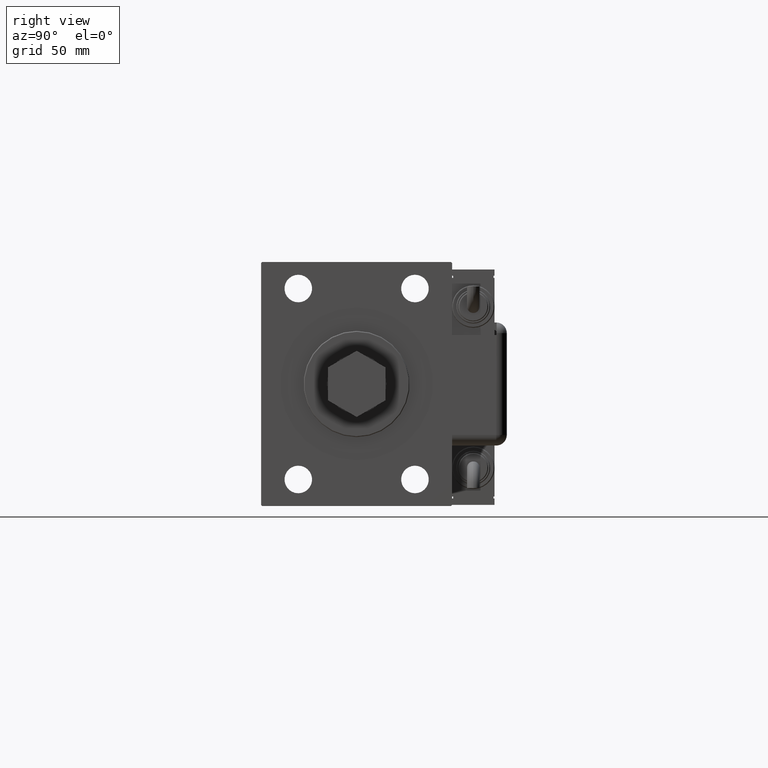
[diagram: clean part render]
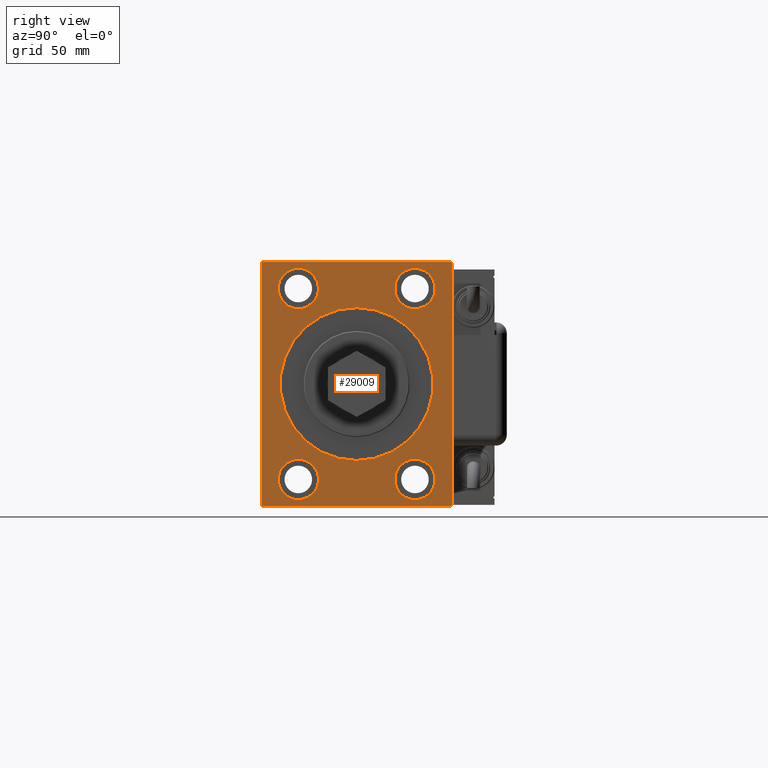
[diagram: same view with one face highlighted and labeled with its STEP entity id]
A machine part, right view. The second image highlights one B-rep face of the part: STEP entity #29009.
In plain terms, the highlighted planar face has unit normal (1, 0, 0).
Its self-contained STEP definition (entity closure, byte-faithful):
#166 = VERTEX_POINT ( 'NONE', #44844 ) ;
#1652 = VERTEX_POINT ( 'NONE', #46540 ) ;
#2323 = DIRECTION ( 'NONE',  ( -1.000000000000000000, -0.000000000000000000, -0.000000000000000000 ) ) ;
#2569 = CARTESIAN_POINT ( 'NONE',  ( 119.7000000000000028, 44.49999999999995737, -57.50000000000001421 ) ) ;
#3242 = ORIENTED_EDGE ( 'NONE', *, *, #55758, .T. ) ;
#3376 = ORIENTED_EDGE ( 'NONE', *, *, #60641, .T. ) ;
#3405 = LINE ( 'NONE', #32169, #45010 ) ;
#3663 = CARTESIAN_POINT ( 'NONE',  ( 119.7000000000000028, -27.50000000000000000, 54.50000000000000000 ) ) ;
#5267 = VERTEX_POINT ( 'NONE', #42845 ) ;
#5726 = FACE_BOUND ( 'NONE', #39815, .T. ) ;
#5850 = CARTESIAN_POINT ( 'NONE',  ( 119.7000000000000028, 51.00000000000000000, 51.00000000000000000 ) ) ;
#5878 = VECTOR ( 'NONE', #20703, 1000.000000000000114 ) ;
#6074 = CARTESIAN_POINT ( 'NONE',  ( 119.7000000000000028, -51.00000000000001421, -51.00000000000001421 ) ) ;
#6187 = AXIS2_PLACEMENT_3D ( 'NONE', #21725, #40282, #16780 ) ;
#6253 = VECTOR ( 'NONE', #49906, 1000.000000000000000 ) ;
#6316 = DIRECTION ( 'NONE',  ( 1.000000000000000000, 0.000000000000000000, 0.000000000000000000 ) ) ;
#7704 = EDGE_CURVE ( 'NONE', #44798, #1652, #42250, .T. ) ;
#8391 = CARTESIAN_POINT ( 'NONE',  ( 119.7000000000000028, 27.50000000000000000, 45.00000000000000000 ) ) ;
#9319 = VERTEX_POINT ( 'NONE', #48025 ) ;
#9547 = EDGE_LOOP ( 'NONE', ( #46536, #15057, #49325, #34138, #33474, #19477, #43448, #49250 ) ) ;
#10188 = LINE ( 'NONE', #5850, #5878 ) ;
#10515 = CARTESIAN_POINT ( 'NONE',  ( 119.7000000000000028, -27.50000000000000000, 45.00000000000000000 ) ) ;
#10525 = CARTESIAN_POINT ( 'NONE',  ( 119.7000000000000028, 27.50000000000000000, -45.00000000000000000 ) ) ;
#10531 = EDGE_LOOP ( 'NONE', ( #3242, #41952 ) ) ;
#10575 = CARTESIAN_POINT ( 'NONE',  ( 119.7000000000000028, 44.99999999999998579, 57.50000000000000000 ) ) ;
#10672 = FACE_BOUND ( 'NONE', #10531, .T. ) ;
#10761 = CARTESIAN_POINT ( 'NONE',  ( 119.7000000000000028, 50.99999999999938893, -51.00000000000080291 ) ) ;
#10812 = DIRECTION ( 'NONE',  ( -1.000000000000000000, -0.000000000000000000, -0.000000000000000000 ) ) ;
#10880 = LINE ( 'NONE', #10575, #55305 ) ;
#11281 = PLANE ( 'NONE',  #50634 ) ;
#13838 = VERTEX_POINT ( 'NONE', #52798 ) ;
#13925 = AXIS2_PLACEMENT_3D ( 'NONE', #50779, #17726, #27899 ) ;
#13962 = CARTESIAN_POINT ( 'NONE',  ( 119.7000000000000028, -44.50000000000000000, 57.49999999999998579 ) ) ;
#14197 = LINE ( 'NONE', #10761, #40024 ) ;
#15057 = ORIENTED_EDGE ( 'NONE', *, *, #49686, .T. ) ;
#15143 = CARTESIAN_POINT ( 'NONE',  ( 119.7000000000000028, -27.50000000000000000, -54.50000000000000000 ) ) ;
#16281 = CIRCLE ( 'NONE', #43908, 9.500000000000001776 ) ;
#16780 = DIRECTION ( 'NONE',  ( 0.000000000000000000, 0.000000000000000000, 1.000000000000000000 ) ) ;
#16845 = LINE ( 'NONE', #21788, #6253 ) ;
#17108 = DIRECTION ( 'NONE',  ( 0.000000000000000000, -0.7071067811865474617, -0.7071067811865474617 ) ) ;
#17631 = EDGE_CURVE ( 'NONE', #19137, #42805, #40388, .T. ) ;
#17726 = DIRECTION ( 'NONE',  ( -1.000000000000000000, -0.000000000000000000, -0.000000000000000000 ) ) ;
#18602 = EDGE_LOOP ( 'NONE', ( #3376, #59871 ) ) ;
#19137 = VERTEX_POINT ( 'NONE', #53771 ) ;
#19477 = ORIENTED_EDGE ( 'NONE', *, *, #58042, .T. ) ;
#19964 = FACE_OUTER_BOUND ( 'NONE', #9547, .T. ) ;
#20112 = DIRECTION ( 'NONE',  ( -1.000000000000000000, -0.000000000000000000, -0.000000000000000000 ) ) ;
#20154 = AXIS2_PLACEMENT_3D ( 'NONE', #35477, #36390, #26495 ) ;
#20319 = LINE ( 'NONE', #6074, #53843 ) ;
#20649 = EDGE_CURVE ( 'NONE', #57451, #53621, #16845, .T. ) ;
#20703 = DIRECTION ( 'NONE',  ( -0.000000000000000000, -0.7071067811865474617, 0.7071067811865474617 ) ) ;
#20787 = DIRECTION ( 'NONE',  ( 0.000000000000000000, -1.000000000000000000, -1.541976423090495633E-16 ) ) ;
#21190 = DIRECTION ( 'NONE',  ( 0.000000000000000000, 0.000000000000000000, 1.000000000000000000 ) ) ;
#21416 = CARTESIAN_POINT ( 'NONE',  ( 119.7000000000000028, -27.50000000000000000, -35.50000000000000000 ) ) ;
#21418 = CIRCLE ( 'NONE', #22384, 9.500000000000001776 ) ;
#21617 = DIRECTION ( 'NONE',  ( 0.000000000000000000, 0.000000000000000000, 1.000000000000000000 ) ) ;
#21628 = CARTESIAN_POINT ( 'NONE',  ( 119.7000000000000028, 27.50000000000000000, 54.50000000000000000 ) ) ;
#21725 = CARTESIAN_POINT ( 'NONE',  ( 119.7000000000000028, -27.50000000000000000, 45.00000000000000000 ) ) ;
#21788 = CARTESIAN_POINT ( 'NONE',  ( 119.7000000000000028, -45.00000000000000000, 57.49999999999998579 ) ) ;
#22052 = LINE ( 'NONE', #35972, #32788 ) ;
#22384 = AXIS2_PLACEMENT_3D ( 'NONE', #39857, #45100, #21617 ) ;
#22981 = CIRCLE ( 'NONE', #20154, 36.00000000000000000 ) ;
#23042 = ORIENTED_EDGE ( 'NONE', *, *, #27209, .F. ) ;
#24153 = CIRCLE ( 'NONE', #43875, 36.00000000000000000 ) ;
#24255 = VERTEX_POINT ( 'NONE', #28678 ) ;
#24607 = FACE_BOUND ( 'NONE', #18602, .T. ) ;
#25826 = CARTESIAN_POINT ( 'NONE',  ( 119.7000000000000028, -27.50000000000000000, -45.00000000000000000 ) ) ;
#25907 = DIRECTION ( 'NONE',  ( -0.000000000000000000, 0.7071067811865574537, 0.7071067811865376918 ) ) ;
#26495 = DIRECTION ( 'NONE',  ( 0.000000000000000000, 0.000000000000000000, -1.000000000000000000 ) ) ;
#26508 = CIRCLE ( 'NONE', #27478, 9.500000000000001776 ) ;
#27209 = EDGE_CURVE ( 'NONE', #24255, #31916, #24153, .T. ) ;
#27262 = DIRECTION ( 'NONE',  ( -1.000000000000000000, -0.000000000000000000, -0.000000000000000000 ) ) ;
#27308 = ORIENTED_EDGE ( 'NONE', *, *, #49871, .T. ) ;
#27478 = AXIS2_PLACEMENT_3D ( 'NONE', #25826, #2323, #21190 ) ;
#27899 = DIRECTION ( 'NONE',  ( 0.000000000000000000, 0.000000000000000000, 1.000000000000000000 ) ) ;
#28040 = EDGE_CURVE ( 'NONE', #31916, #24255, #22981, .T. ) ;
#28447 = AXIS2_PLACEMENT_3D ( 'NONE', #10525, #20112, #42385 ) ;
#28595 = EDGE_LOOP ( 'NONE', ( #23042, #58715 ) ) ;
#28678 = CARTESIAN_POINT ( 'NONE',  ( 119.7000000000000028, 0.000000000000000000, -36.00000000000000000 ) ) ;
#29009 = ADVANCED_FACE ( 'NONE', ( #5726, #44058, #24607, #10672, #44367, #19964 ), #11281, .T. ) ;
#29433 = VERTEX_POINT ( 'NONE', #35043 ) ;
#29449 = EDGE_CURVE ( 'NONE', #29433, #47200, #32872, .T. ) ;
#29553 = DIRECTION ( 'NONE',  ( 1.000000000000000000, 0.000000000000000000, 0.000000000000000000 ) ) ;
#30307 = DIRECTION ( 'NONE',  ( 0.000000000000000000, 0.000000000000000000, 1.000000000000000000 ) ) ;
#30535 = CIRCLE ( 'NONE', #37466, 9.500000000000001776 ) ;
#31197 = EDGE_LOOP ( 'NONE', ( #44148, #27308 ) ) ;
#31426 = CARTESIAN_POINT ( 'NONE',  ( 119.7000000000000028, 27.50000000000000000, -45.00000000000000000 ) ) ;
#31916 = VERTEX_POINT ( 'NONE', #60323 ) ;
#32169 = CARTESIAN_POINT ( 'NONE',  ( 119.7000000000000028, 45.00000000000000000, -57.50000000000001421 ) ) ;
#32788 = VECTOR ( 'NONE', #17108, 1000.000000000000114 ) ;
#32872 = CIRCLE ( 'NONE', #6187, 9.500000000000001776 ) ;
#33474 = ORIENTED_EDGE ( 'NONE', *, *, #17631, .T. ) ;
#33779 = VERTEX_POINT ( 'NONE', #21416 ) ;
#34138 = ORIENTED_EDGE ( 'NONE', *, *, #35571, .T. ) ;
#34625 = CARTESIAN_POINT ( 'NONE',  ( 119.7000000000000028, -45.00000000000000000, -57.00000000000004263 ) ) ;
#35043 = CARTESIAN_POINT ( 'NONE',  ( 119.7000000000000028, -27.50000000000000000, 35.50000000000000000 ) ) ;
#35477 = CARTESIAN_POINT ( 'NONE',  ( 119.7000000000000028, 0.000000000000000000, 0.000000000000000000 ) ) ;
#35571 = EDGE_CURVE ( 'NONE', #53621, #19137, #20319, .T. ) ;
#35803 = ORIENTED_EDGE ( 'NONE', *, *, #39540, .T. ) ;
#35972 = CARTESIAN_POINT ( 'NONE',  ( 119.7000000000000028, -51.00000000000000711, 51.00000000000000711 ) ) ;
#36390 = DIRECTION ( 'NONE',  ( 1.000000000000000000, 0.000000000000000000, 0.000000000000000000 ) ) ;
#37466 = AXIS2_PLACEMENT_3D ( 'NONE', #8391, #27262, #55686 ) ;
#37881 = DIRECTION ( 'NONE',  ( 0.000000000000000000, 0.000000000000000000, 1.000000000000000000 ) ) ;
#39427 = DIRECTION ( 'NONE',  ( 0.000000000000000000, 0.000000000000000000, -1.000000000000000000 ) ) ;
#39540 = EDGE_CURVE ( 'NONE', #1652, #44798, #54017, .T. ) ;
#39815 = EDGE_LOOP ( 'NONE', ( #45432, #35803 ) ) ;
#39857 = CARTESIAN_POINT ( 'NONE',  ( 119.7000000000000028, 27.50000000000000000, 45.00000000000000000 ) ) ;
#40024 = VECTOR ( 'NONE', #25907, 999.9999999999998863 ) ;
#40282 = DIRECTION ( 'NONE',  ( -1.000000000000000000, -0.000000000000000000, -0.000000000000000000 ) ) ;
#40388 = LINE ( 'NONE', #49951, #55543 ) ;
#41304 = DIRECTION ( 'NONE',  ( 0.000000000000000000, 1.000000000000000000, 0.000000000000000000 ) ) ;
#41952 = ORIENTED_EDGE ( 'NONE', *, *, #29449, .T. ) ;
#42250 = CIRCLE ( 'NONE', #28447, 9.500000000000001776 ) ;
#42385 = DIRECTION ( 'NONE',  ( 0.000000000000000000, 0.000000000000000000, 1.000000000000000000 ) ) ;
#42562 = EDGE_CURVE ( 'NONE', #33779, #53475, #26508, .T. ) ;
#42805 = VERTEX_POINT ( 'NONE', #2569 ) ;
#42845 = CARTESIAN_POINT ( 'NONE',  ( 119.7000000000000028, 44.50000000000001421, 57.50000000000000000 ) ) ;
#43448 = ORIENTED_EDGE ( 'NONE', *, *, #58797, .T. ) ;
#43875 = AXIS2_PLACEMENT_3D ( 'NONE', #54227, #6316, #59163 ) ;
#43908 = AXIS2_PLACEMENT_3D ( 'NONE', #10515, #10812, #30307 ) ;
#44058 = FACE_BOUND ( 'NONE', #31197, .T. ) ;
#44148 = ORIENTED_EDGE ( 'NONE', *, *, #42562, .T. ) ;
#44367 = FACE_BOUND ( 'NONE', #28595, .T. ) ;
#44486 = EDGE_CURVE ( 'NONE', #13838, #48207, #30535, .T. ) ;
#44549 = VERTEX_POINT ( 'NONE', #13962 ) ;
#44798 = VERTEX_POINT ( 'NONE', #44984 ) ;
#44844 = CARTESIAN_POINT ( 'NONE',  ( 119.7000000000000028, 44.99999999999998579, 57.00000000000000000 ) ) ;
#44984 = CARTESIAN_POINT ( 'NONE',  ( 119.7000000000000028, 27.50000000000000000, -35.50000000000000000 ) ) ;
#45010 = VECTOR ( 'NONE', #59658, 1000.000000000000000 ) ;
#45100 = DIRECTION ( 'NONE',  ( -1.000000000000000000, -0.000000000000000000, -0.000000000000000000 ) ) ;
#45432 = ORIENTED_EDGE ( 'NONE', *, *, #7704, .T. ) ;
#45909 = EDGE_CURVE ( 'NONE', #166, #5267, #10188, .T. ) ;
#46133 = AXIS2_PLACEMENT_3D ( 'NONE', #31426, #46848, #37881 ) ;
#46536 = ORIENTED_EDGE ( 'NONE', *, *, #46680, .T. ) ;
#46540 = CARTESIAN_POINT ( 'NONE',  ( 119.7000000000000028, 27.50000000000000000, -54.50000000000000000 ) ) ;
#46680 = EDGE_CURVE ( 'NONE', #5267, #44549, #10880, .T. ) ;
#46848 = DIRECTION ( 'NONE',  ( -1.000000000000000000, -0.000000000000000000, -0.000000000000000000 ) ) ;
#47200 = VERTEX_POINT ( 'NONE', #3663 ) ;
#48025 = CARTESIAN_POINT ( 'NONE',  ( 119.7000000000000028, 45.00000000000000000, -57.00000000000001421 ) ) ;
#48207 = VERTEX_POINT ( 'NONE', #21628 ) ;
#49250 = ORIENTED_EDGE ( 'NONE', *, *, #45909, .T. ) ;
#49325 = ORIENTED_EDGE ( 'NONE', *, *, #20649, .T. ) ;
#49686 = EDGE_CURVE ( 'NONE', #44549, #57451, #22052, .T. ) ;
#49871 = EDGE_CURVE ( 'NONE', #53475, #33779, #56375, .T. ) ;
#49906 = DIRECTION ( 'NONE',  ( 0.000000000000000000, 0.000000000000000000, -1.000000000000000000 ) ) ;
#49951 = CARTESIAN_POINT ( 'NONE',  ( 119.7000000000000028, -45.00000000000000000, -57.50000000000001421 ) ) ;
#50634 = AXIS2_PLACEMENT_3D ( 'NONE', #57663, #29553, #39427 ) ;
#50779 = CARTESIAN_POINT ( 'NONE',  ( 119.7000000000000028, -27.50000000000000000, -45.00000000000000000 ) ) ;
#52798 = CARTESIAN_POINT ( 'NONE',  ( 119.7000000000000028, 27.50000000000000000, 35.50000000000000000 ) ) ;
#53373 = DIRECTION ( 'NONE',  ( -0.000000000000000000, 0.7071067811865474617, -0.7071067811865474617 ) ) ;
#53475 = VERTEX_POINT ( 'NONE', #15143 ) ;
#53621 = VERTEX_POINT ( 'NONE', #34625 ) ;
#53631 = CARTESIAN_POINT ( 'NONE',  ( 119.7000000000000028, -45.00000000000000000, 57.00000000000001421 ) ) ;
#53771 = CARTESIAN_POINT ( 'NONE',  ( 119.7000000000000028, -44.50000000000002842, -57.50000000000001421 ) ) ;
#53843 = VECTOR ( 'NONE', #53373, 1000.000000000000114 ) ;
#54017 = CIRCLE ( 'NONE', #46133, 9.500000000000001776 ) ;
#54227 = CARTESIAN_POINT ( 'NONE',  ( 119.7000000000000028, 0.000000000000000000, 0.000000000000000000 ) ) ;
#55305 = VECTOR ( 'NONE', #20787, 1000.000000000000000 ) ;
#55543 = VECTOR ( 'NONE', #41304, 1000.000000000000000 ) ;
#55686 = DIRECTION ( 'NONE',  ( 0.000000000000000000, 0.000000000000000000, 1.000000000000000000 ) ) ;
#55758 = EDGE_CURVE ( 'NONE', #47200, #29433, #16281, .T. ) ;
#56375 = CIRCLE ( 'NONE', #13925, 9.500000000000001776 ) ;
#57451 = VERTEX_POINT ( 'NONE', #53631 ) ;
#57663 = CARTESIAN_POINT ( 'NONE',  ( 119.7000000000000028, 0.000000000000000000, 0.000000000000000000 ) ) ;
#58042 = EDGE_CURVE ( 'NONE', #42805, #9319, #14197, .T. ) ;
#58715 = ORIENTED_EDGE ( 'NONE', *, *, #28040, .F. ) ;
#58797 = EDGE_CURVE ( 'NONE', #9319, #166, #3405, .T. ) ;
#59163 = DIRECTION ( 'NONE',  ( 0.000000000000000000, 0.000000000000000000, -1.000000000000000000 ) ) ;
#59658 = DIRECTION ( 'NONE',  ( 0.000000000000000000, -1.206764157201257045E-16, 1.000000000000000000 ) ) ;
#59871 = ORIENTED_EDGE ( 'NONE', *, *, #44486, .T. ) ;
#60323 = CARTESIAN_POINT ( 'NONE',  ( 119.7000000000000028, 4.408728476930470856E-15, 36.00000000000000000 ) ) ;
#60641 = EDGE_CURVE ( 'NONE', #48207, #13838, #21418, .T. ) ;